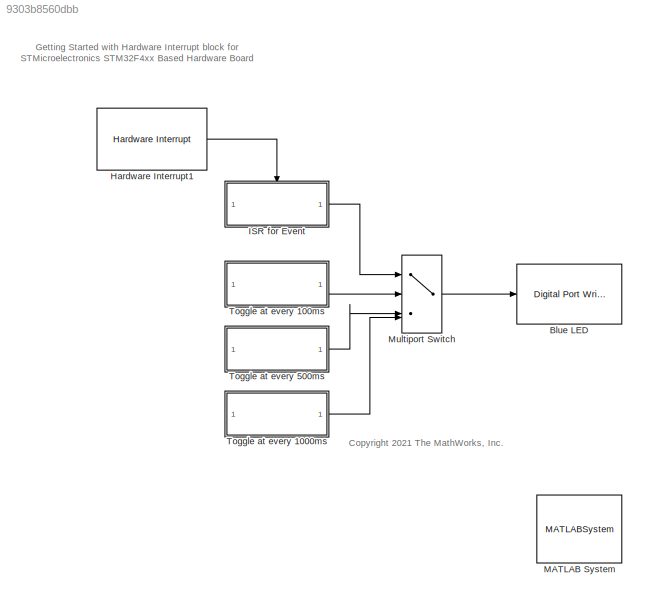
MODEL slx_9303b8560dbb
KIND model
CONFIG AbsTol = auto
CONFIG EnableMultiTasking = on
CONFIG FixedStep = auto
CONFIG MaxStep = auto
CONFIG MinStep = auto
CONFIG RelTol = 1e-3
CONFIG SampleTimeConstraint = Unconstrained
CONFIG SolverName = FixedStepAuto
CONFIG StartTime = 0.0
CONFIG StopTime = inf
BLOCK [Reference] Blue LED  REF=stm32f4xxblockslib/Digital Port Write
  SourceBlock = stm32f4xxblockslib/Digital Port Write
  SourceType = stm32cube.blocks.DigitalPortWrite
BLOCK [Reference] Hardware Interrupt1  REF=stm32f4xxblockslib/Hardware Interrupt
  SourceBlock = stm32f4xxblockslib/Hardware Interrupt
  SourceType = stm32cube.blocks.HardwareInterrupt
  UserDataPersistent = on
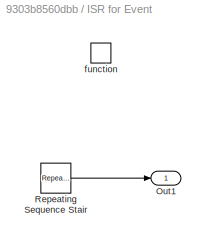
BLOCK [SubSystem] ISR for Event
  TreatAsAtomicUnit = on
BLOCK [Outport] ISR for Event/Out1
BLOCK [Reference] ISR for Event/Repeating Sequence Stair  REF=simulink/Sources/Repeating
Sequence
Stair
  SourceBlock = simulink/Sources/Repeating\nSequence\nStair
  SourceType = Repeating Sequence Stair
BLOCK [TriggerPort] ISR for Event/function
  StatesWhenEnabling = held
  TriggerType = function-call
  VariantControl = (inherit)
BLOCK [MATLABSystem] MATLAB System
  MaskDisplay = disp('Sink');\nport_label('input',1,'u');
  MaskType = Sink
  System = Sink
BLOCK [MultiPortSwitch] Multiport Switch
  DataPortOrder = Zero-based contiguous
  InputSameDT = off
  SaturateOnIntegerOverflow = off
  zeroidx = on
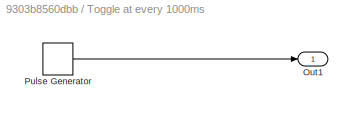
BLOCK [SubSystem] Toggle at every 1000ms
BLOCK [Outport] Toggle at every 1000ms/Out1
BLOCK [DiscretePulseGenerator] Toggle at every 1000ms/Pulse Generator
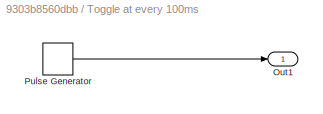
BLOCK [SubSystem] Toggle at every 100ms
BLOCK [Outport] Toggle at every 100ms/Out1
BLOCK [DiscretePulseGenerator] Toggle at every 100ms/Pulse Generator
  SampleTime = 0.1
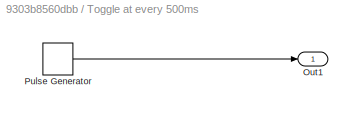
BLOCK [SubSystem] Toggle at every 500ms
BLOCK [Outport] Toggle at every 500ms/Out1
BLOCK [DiscretePulseGenerator] Toggle at every 500ms/Pulse Generator
  SampleTime = 0.5
ANNOTATION (root): Getting Started with Hardware Interrupt block for STMicroelectronics STM32F4xx Based Hardware Board
ANNOTATION (root): <copyright redacted>
LINE Hardware Interrupt1:1 -> ISR for Event:trigger
LINE ISR for Event/Repeating Sequence Stair:1 -> ISR for Event/Out1:1
LINE ISR for Event:1 -> Multiport Switch:1
LINE Multiport Switch:1 -> Blue LED:1
LINE Toggle at every 1000ms/Pulse Generator:1 -> Toggle at every 1000ms/Out1:1
LINE Toggle at every 1000ms:1 -> Multiport Switch:4
LINE Toggle at every 100ms/Pulse Generator:1 -> Toggle at every 100ms/Out1:1
LINE Toggle at every 100ms:1 -> Multiport Switch:2
LINE Toggle at every 500ms/Pulse Generator:1 -> Toggle at every 500ms/Out1:1
LINE Toggle at every 500ms:1 -> Multiport Switch:3
